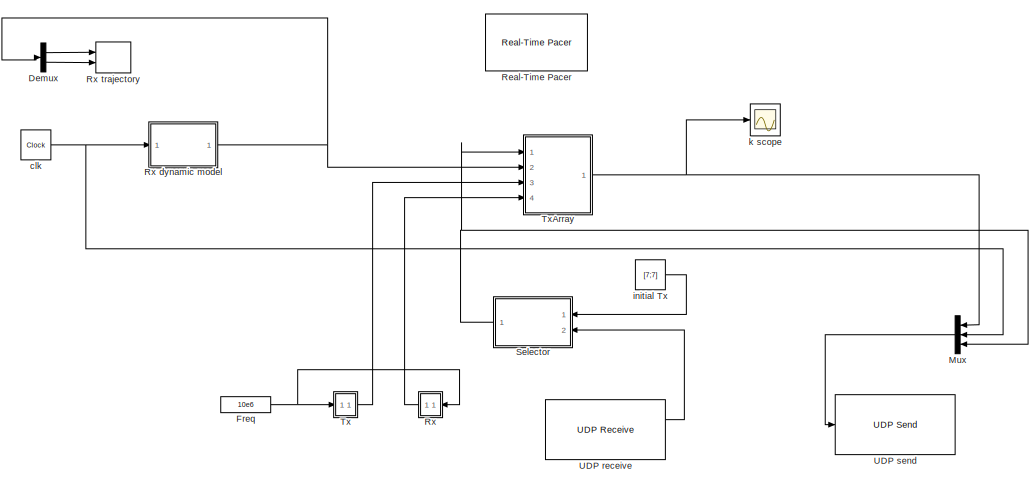
[diagram: root canvas - part 1/2, right side, full height]
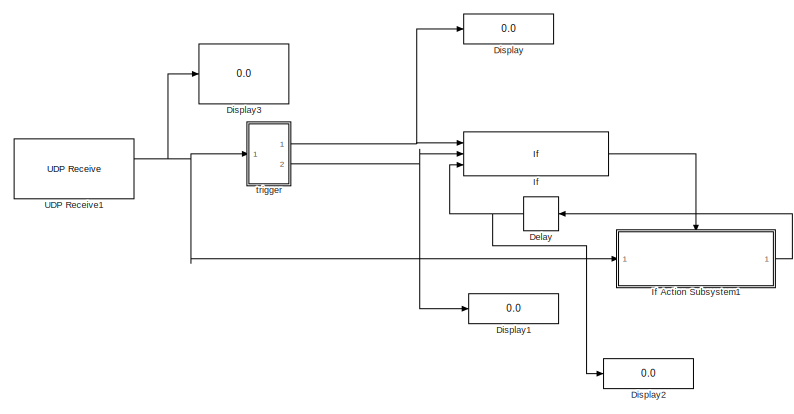
[diagram: root canvas - part 2/2, left side, full height]
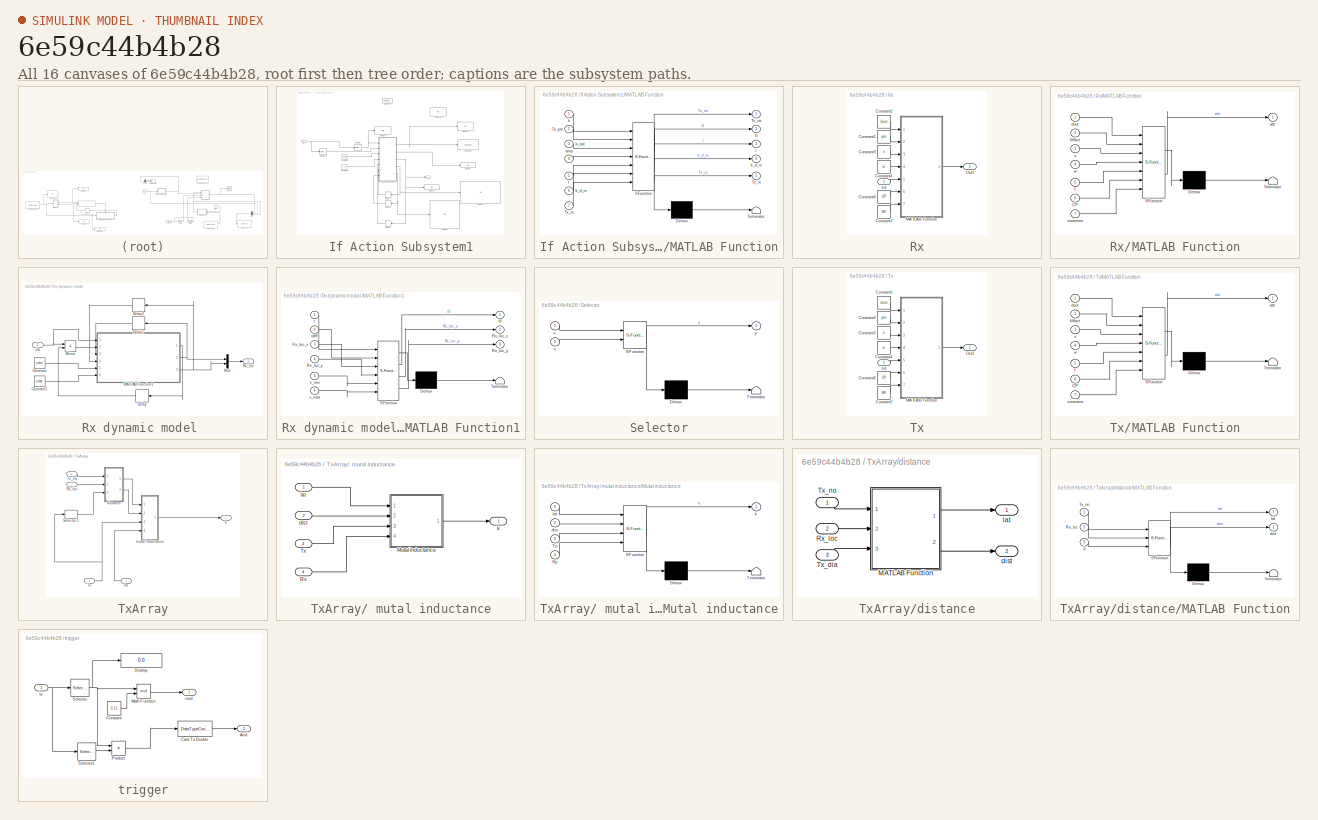
[diagram: thumbnail index - all 16 canvases of the model, root first then tree order]
MODEL slx_6e59c44b4b28
KIND model
CONFIG AbsTol = auto
CONFIG EnableMultiTasking = on
CONFIG FixedStep = 0.01
CONFIG MaxStep = auto
CONFIG MinStep = auto
CONFIG RelTol = 1e-3
CONFIG SampleTimeConstraint = Unconstrained
CONFIG SolverName = FixedStepDiscrete
CONFIG StartTime = 0.0
CONFIG StopTime = 50
BLOCK [Delay] Delay
  Commented = on
  DelayLength = 1
  InitialCondition = 0
  InputPortMap = u0
  Ports = [1, 1]
BLOCK [Demux] Demux
  Outputs = 2
  Ports = [1, 2]
BLOCK [Display] Display
  Commented = on
  Decimation = 1
  Ports = [1]
BLOCK [Display] Display1
  Commented = on
  Decimation = 1
  Ports = [1]
BLOCK [Display] Display2
  Commented = on
  Decimation = 1
  Ports = [1]
BLOCK [Display] Display3
  Commented = on
  Decimation = 1
  Ports = [1]
BLOCK [Constant] Freq
  Value = 10e6
BLOCK [If] If
  Commented = on
  IfExpression = (u1 == 0 & u2 ~=0) | u3 > 1
  NumInputs = 3
  Ports = [3, 1]
  ShowElse = off
BLOCK [SubSystem] If Action Subsystem1
  Commented = on
  Ports = [1, 1, 0, 0, 0, 0, 0, 1]
  RequestExecContextInheritance = off
  TreatAsAtomicUnit = on
BLOCK [ActionPort] If Action Subsystem1/Action Port
  ActionPortLabel = if((u1 == 0 & u2 ~=0) | u3 > 1)
BLOCK [Constant] If Action Subsystem1/Constant1
  Value = 2.88e-2
BLOCK [Constant] If Action Subsystem1/Constant2
  Value = 2.6
BLOCK [Delay] If Action Subsystem1/Delay1
  DelayLength = 1
  InitialCondition = zeros(2,3)
  InputPortMap = u0
  Ports = [1, 1]
BLOCK [Delay] If Action Subsystem1/Delay3
  DelayLength = 1
  InitialCondition = zeros(8,2)
  InputPortMap = u0
  Ports = [1, 1]
BLOCK [Delay] If Action Subsystem1/Delay4
  DelayLength = 1
  InitialCondition = 0
  InputPortMap = u0
  Ports = [1, 1]
BLOCK [Display] If Action Subsystem1/Display1
  Decimation = 1
  Ports = [1]
BLOCK [Display] If Action Subsystem1/Display2
  Decimation = 1
  Ports = [1]
BLOCK [Display] If Action Subsystem1/Display3
  Decimation = 1
  Ports = [1]
BLOCK [Display] If Action Subsystem1/Display4
  Decimation = 1
  Ports = [1]
BLOCK [Display] If Action Subsystem1/Display5
  Decimation = 1
  Ports = [1]
BLOCK [Display] If Action Subsystem1/Display6
  Decimation = 1
  Ports = [1]
BLOCK [Display] If Action Subsystem1/Display7
  Decimation = 1
  Ports = [1]
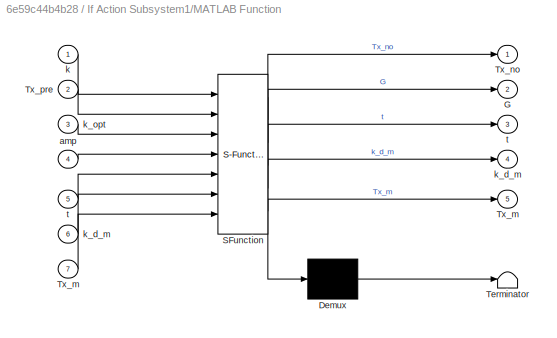
BLOCK [SubSystem] If Action Subsystem1/MATLAB Function
  ErrorFcn = Stateflow.Translate.translate
  PermitHierarchicalResolution = ExplicitOnly
  Ports = [7, 5]
  RequestExecContextInheritance = off
  SFBlockType = MATLAB Function
  TreatAsAtomicUnit = on
BLOCK [Demux] If Action Subsystem1/MATLAB Function/ Demux 
  Outputs = 1
  Ports = [1, 1]
BLOCK [S-Function] If Action Subsystem1/MATLAB Function/ SFunction 
  EnableBusSupport = on
  FunctionName = sf_sfun
  PortCounts = [7 6]
  Ports = [7, 6]
  SFcnIsStateOwnerBlock = off
  SFunctionDeploymentMode = off
  Tag = Stateflow S-Function 8
BLOCK [Terminator] If Action Subsystem1/MATLAB Function/ Terminator 
BLOCK [Outport] If Action Subsystem1/MATLAB Function/G
  Port = 2
BLOCK [Outport] If Action Subsystem1/MATLAB Function/Tx_m
  Port = 5
BLOCK [Inport] If Action Subsystem1/MATLAB Function/Tx_m 
  Port = 7
BLOCK [Outport] If Action Subsystem1/MATLAB Function/Tx_no
BLOCK [Inport] If Action Subsystem1/MATLAB Function/Tx_pre
  Port = 2
BLOCK [Inport] If Action Subsystem1/MATLAB Function/amp
  Port = 4
BLOCK [Inport] If Action Subsystem1/MATLAB Function/k
BLOCK [Outport] If Action Subsystem1/MATLAB Function/k_d_m
  Port = 4
BLOCK [Inport] If Action Subsystem1/MATLAB Function/k_d_m 
  Port = 6
BLOCK [Inport] If Action Subsystem1/MATLAB Function/k_opt
  Port = 3
BLOCK [Outport] If Action Subsystem1/MATLAB Function/t
  Port = 3
BLOCK [Inport] If Action Subsystem1/MATLAB Function/t 
  Port = 5
BLOCK [Selector] If Action Subsystem1/Selector
  IndexOptions = Index vector (dialog)
  Indices = 1
  InputPortWidth = 4
  OutputSizes = 1
  Ports = [1, 1]
BLOCK [Selector] If Action Subsystem1/Selector1
  IndexOptions = Index vector (dialog)
  Indices = [3;4]
  InputPortWidth = 4
  OutputSizes = 1
  Ports = [1, 1]
BLOCK [Reference] If Action Subsystem1/UDP Send  REF=raspberrypiNetworklib/UDP Send
  Ports = [1]
  SourceBlock = raspberrypiNetworklib/UDP Send
  SourceProductBaseCode = RASPPI
  SourceType = UDP Send
BLOCK [Inport] If Action Subsystem1/ip
BLOCK [Outport] If Action Subsystem1/t
BLOCK [Mux] Mux
  DisplayOption = bar
  Inputs = 3
  Ports = [3, 1]
BLOCK [Reference] Real-Time Pacer  REF=realtime_pacer_lib/Real-Time Pacer
  Ports = []
  SourceBlock = realtime_pacer_lib/Real-Time Pacer
  SourceProductName = Real-Time Pacer
  SourceType = RealTime_Pacer
BLOCK [SubSystem] Rx
  Ports = [1, 1]
  RequestExecContextInheritance = off
BLOCK [SubSystem] Rx dynamic model 
  Ports = [1, 1]
  RequestExecContextInheritance = off
BLOCK [Constant] Rx dynamic model /Constant
  Value = v_min
  VectorParams1D = off
BLOCK [Constant] Rx dynamic model /Constant1
  Value = v_max
  VectorParams1D = off
BLOCK [Delay] Rx dynamic model /Delay
  DelayLength = 1
  InitialCondition = 0
  InputPortMap = u0
  Ports = [1, 1]
BLOCK [Delay] Rx dynamic model /Delay1
  DelayLength = 1
  InitialCondition = initx
  InputPortMap = u0
  Ports = [1, 1]
BLOCK [Delay] Rx dynamic model /Delay2
  DelayLength = 1
  InitialCondition = inity
  InputPortMap = u0
  Ports = [1, 1]
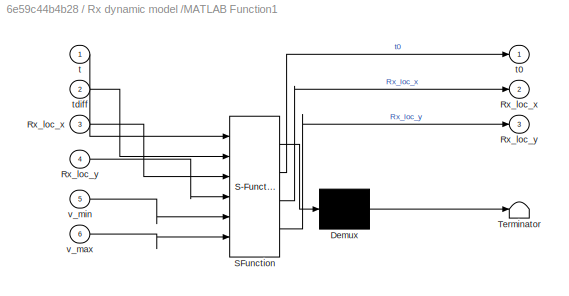
BLOCK [SubSystem] Rx dynamic model /MATLAB Function1
  ErrorFcn = Stateflow.Translate.translate
  PermitHierarchicalResolution = ExplicitOnly
  Ports = [6, 3]
  RequestExecContextInheritance = off
  SFBlockType = MATLAB Function
  TreatAsAtomicUnit = on
BLOCK [Demux] Rx dynamic model /MATLAB Function1/ Demux 
  Outputs = 1
  Ports = [1, 1]
BLOCK [S-Function] Rx dynamic model /MATLAB Function1/ SFunction 
  EnableBusSupport = on
  FunctionName = sf_sfun
  PortCounts = [6 4]
  Ports = [6, 4]
  SFcnIsStateOwnerBlock = off
  SFunctionDeploymentMode = off
  Tag = Stateflow S-Function 5
BLOCK [Terminator] Rx dynamic model /MATLAB Function1/ Terminator 
BLOCK [Outport] Rx dynamic model /MATLAB Function1/Rx_loc_x
  Port = 2
BLOCK [Inport] Rx dynamic model /MATLAB Function1/Rx_loc_x 
  Port = 3
BLOCK [Outport] Rx dynamic model /MATLAB Function1/Rx_loc_y
  Port = 3
BLOCK [Inport] Rx dynamic model /MATLAB Function1/Rx_loc_y 
  Port = 4
BLOCK [Inport] Rx dynamic model /MATLAB Function1/t
BLOCK [Outport] Rx dynamic model /MATLAB Function1/t0
BLOCK [Inport] Rx dynamic model /MATLAB Function1/tdiff
  Port = 2
BLOCK [Inport] Rx dynamic model /MATLAB Function1/v_max
  Port = 6
BLOCK [Inport] Rx dynamic model /MATLAB Function1/v_min
  Port = 5
BLOCK [Sum] Rx dynamic model /Minus
  IconShape = rectangular
  Inputs = +-
  Ports = [2, 1]
BLOCK [Mux] Rx dynamic model /Mux
  DisplayOption = bar
  Inputs = 2
  Ports = [2, 1]
BLOCK [Outport] Rx dynamic model /Rx_loc
BLOCK [Inport] Rx dynamic model /clk
BLOCK [Record] Rx trajectory
  CompatibilityTag = XY
  FileSettingsInternal = {"entries":[{"content":{"excelSettings":{"content":{},"type":"Streamout.ExcelSettings"}},"type":"Streamout.FileSettingStorage","uuid":"31a4ec05-c512-48d1-876e-5766672d7d43"}],"packageUris":["http://schema.mathworks.com/mf0/streamout_blocks/R2020a"],"version":"1.0"}
  Layout = [1 1]
  Ports = [2]
  RecordToWorkspace = on
  SignalsInternal = {"entries":[{"content":{"signals":[{"content":{"blockPath":["TxArray/Rx trajectory"],"channel":[],"dimensions":[1],"domain":"TxArray/Rx trajectory","lineColor":"#a2142f","plots":[1],"port":1,"sid":[""],"signalID":51290,"signalName":"Demux:1"},"type":"RecordBlkView.Signal","uuid":"0aae7323-a21c-435c-a499-c26e652a0b80"},{"content":{"blockPath":["TxArray/Rx trajectory"],"channel":[],"dimensions":[1],...<+381ch>
  VisualizationBindings = {"xyplotplugin":{"info":[{"series":[{"bindingParametersList":[{"parameter":"X-Axis","signalID":51290,"signalName":"Demux:1"},{"parameter":"Y-Axis","signalID":51294,"signalName":"Demux:2"}],"seriesID":44186}],"subplotID":1}]}}
BLOCK [Constant] Rx/Constant1
  Value = dout
BLOCK [Constant] Rx/Constant2
  Value = phi
BLOCK [Constant] Rx/Constant3
  Value = s
BLOCK [Constant] Rx/Constant4
  Value = w
BLOCK [Constant] Rx/Constant6
  Value = CP
BLOCK [Constant] Rx/Constant7
  Value = SR
BLOCK [Inport] Rx/In1
BLOCK [SubSystem] Rx/MATLAB Function
  ErrorFcn = Stateflow.Translate.translate
  PermitHierarchicalResolution = ExplicitOnly
  Ports = [7, 1]
  RequestExecContextInheritance = off
  SFBlockType = MATLAB Function
  TreatAsAtomicUnit = on
BLOCK [Demux] Rx/MATLAB Function/ Demux 
  Outputs = 1
  Ports = [1, 1]
BLOCK [S-Function] Rx/MATLAB Function/ SFunction 
  EnableBusSupport = on
  FunctionName = sf_sfun
  PortCounts = [7 2]
  Ports = [7, 2]
  SFcnIsStateOwnerBlock = off
  SFunctionDeploymentMode = off
  Tag = Stateflow S-Function 4
BLOCK [Terminator] Rx/MATLAB Function/ Terminator 
BLOCK [Inport] Rx/MATLAB Function/CP
  Port = 6
BLOCK [Outport] Rx/MATLAB Function/attr
BLOCK [Inport] Rx/MATLAB Function/dout
BLOCK [Inport] Rx/MATLAB Function/f
  Port = 5
BLOCK [Inport] Rx/MATLAB Function/fillfact
  Port = 2
BLOCK [Inport] Rx/MATLAB Function/s
  Port = 3
BLOCK [Inport] Rx/MATLAB Function/sourceres
  Port = 7
BLOCK [Inport] Rx/MATLAB Function/w
  Port = 4
BLOCK [Outport] Rx/Out1
BLOCK [SubSystem] Selector
  ErrorFcn = Stateflow.Translate.translate
  NameLocation = top
  PermitHierarchicalResolution = ExplicitOnly
  Ports = [2, 1]
  RequestExecContextInheritance = off
  SFBlockType = MATLAB Function
  TreatAsAtomicUnit = on
BLOCK [Demux] Selector/ Demux 
  Outputs = 1
  Ports = [1, 1]
BLOCK [S-Function] Selector/ SFunction 
  EnableBusSupport = on
  FunctionName = sf_sfun
  PortCounts = [2 2]
  Ports = [2, 2]
  SFcnIsStateOwnerBlock = off
  SFunctionDeploymentMode = off
  Tag = Stateflow S-Function 3
BLOCK [Terminator] Selector/ Terminator 
BLOCK [Inport] Selector/u
  Port = 2
BLOCK [Inport] Selector/v
BLOCK [Outport] Selector/y
BLOCK [SubSystem] Tx
  Ports = [1, 1]
  RequestExecContextInheritance = off
BLOCK [Constant] Tx/Constant1
  Value = dout
BLOCK [Constant] Tx/Constant2
  Value = phi
BLOCK [Constant] Tx/Constant3
  Value = s
BLOCK [Constant] Tx/Constant4
  Value = w
BLOCK [Constant] Tx/Constant6
  Value = CP
BLOCK [Constant] Tx/Constant7
  Value = SR
BLOCK [Inport] Tx/In1
BLOCK [SubSystem] Tx/MATLAB Function
  ErrorFcn = Stateflow.Translate.translate
  PermitHierarchicalResolution = ExplicitOnly
  Ports = [7, 1]
  RequestExecContextInheritance = off
  SFBlockType = MATLAB Function
  TreatAsAtomicUnit = on
BLOCK [Demux] Tx/MATLAB Function/ Demux 
  Outputs = 1
  Ports = [1, 1]
BLOCK [S-Function] Tx/MATLAB Function/ SFunction 
  EnableBusSupport = on
  FunctionName = sf_sfun
  PortCounts = [7 2]
  Ports = [7, 2]
  SFcnIsStateOwnerBlock = off
  SFunctionDeploymentMode = off
  Tag = Stateflow S-Function 2
BLOCK [Terminator] Tx/MATLAB Function/ Terminator 
BLOCK [Inport] Tx/MATLAB Function/CP
  Port = 6
BLOCK [Outport] Tx/MATLAB Function/attr
BLOCK [Inport] Tx/MATLAB Function/dout
BLOCK [Inport] Tx/MATLAB Function/f
  Port = 5
BLOCK [Inport] Tx/MATLAB Function/fillfact
  Port = 2
BLOCK [Inport] Tx/MATLAB Function/s
  Port = 3
BLOCK [Inport] Tx/MATLAB Function/sourceres
  Port = 7
BLOCK [Inport] Tx/MATLAB Function/w
  Port = 4
BLOCK [Outport] Tx/Out1
BLOCK [SubSystem] TxArray
  Ports = [4, 1]
  RequestExecContextInheritance = off
BLOCK [SubSystem] TxArray/ mutal inductance
  Ports = [4, 1]
  RequestExecContextInheritance = off
BLOCK [SubSystem] TxArray/ mutal inductance/Mutal inductance
  ErrorFcn = Stateflow.Translate.translate
  PermitHierarchicalResolution = ExplicitOnly
  Ports = [4, 1]
  RequestExecContextInheritance = off
  SFBlockType = MATLAB Function
  TreatAsAtomicUnit = on
BLOCK [Demux] TxArray/ mutal inductance/Mutal inductance/ Demux 
  Outputs = 1
  Ports = [1, 1]
BLOCK [S-Function] TxArray/ mutal inductance/Mutal inductance/ SFunction 
  EnableBusSupport = on
  FunctionName = sf_sfun
  PortCounts = [4 2]
  Ports = [4, 2]
  SFcnIsStateOwnerBlock = off
  SFunctionDeploymentMode = off
  Tag = Stateflow S-Function 1
BLOCK [Terminator] TxArray/ mutal inductance/Mutal inductance/ Terminator 
BLOCK [Inport] TxArray/ mutal inductance/Mutal inductance/Rp
  Port = 4
BLOCK [Inport] TxArray/ mutal inductance/Mutal inductance/Tp
  Port = 3
BLOCK [Inport] TxArray/ mutal inductance/Mutal inductance/dist
  Port = 2
BLOCK [Outport] TxArray/ mutal inductance/Mutal inductance/k
BLOCK [Inport] TxArray/ mutal inductance/Mutal inductance/lat
BLOCK [Inport] TxArray/ mutal inductance/Rx
  Port = 4
BLOCK [Inport] TxArray/ mutal inductance/Tx
  Port = 3
BLOCK [Inport] TxArray/ mutal inductance/dist
  Port = 2
BLOCK [Outport] TxArray/ mutal inductance/k
BLOCK [Inport] TxArray/ mutal inductance/lat
BLOCK [Inport] TxArray/Rx
  Port = 4
BLOCK [Inport] TxArray/Rx_loc
  Port = 2
BLOCK [Selector] TxArray/Selector 1
  IndexOptions = Index vector (dialog)
  Indices = 1
  InputPortWidth = 14
  OutputSizes = 1
  Ports = [1, 1]
BLOCK [Inport] TxArray/Tx
  Port = 3
BLOCK [Inport] TxArray/Tx_no
BLOCK [SubSystem] TxArray/distance
  Ports = [3, 2]
  RequestExecContextInheritance = off
BLOCK [SubSystem] TxArray/distance/MATLAB Function
  ErrorFcn = Stateflow.Translate.translate
  PermitHierarchicalResolution = ExplicitOnly
  Ports = [3, 2]
  RequestExecContextInheritance = off
  SFBlockType = MATLAB Function
  TreatAsAtomicUnit = on
BLOCK [Demux] TxArray/distance/MATLAB Function/ Demux 
  Outputs = 1
  Ports = [1, 1]
BLOCK [S-Function] TxArray/distance/MATLAB Function/ SFunction 
  EnableBusSupport = on
  FunctionName = sf_sfun
  PortCounts = [3 3]
  Ports = [3, 3]
  SFcnIsStateOwnerBlock = off
  SFunctionDeploymentMode = off
  Tag = Stateflow S-Function 6
BLOCK [Terminator] TxArray/distance/MATLAB Function/ Terminator 
BLOCK [Inport] TxArray/distance/MATLAB Function/Rx_loc
  Port = 2
BLOCK [Inport] TxArray/distance/MATLAB Function/Tx_no
BLOCK [Inport] TxArray/distance/MATLAB Function/d
  Port = 3
BLOCK [Outport] TxArray/distance/MATLAB Function/dist
  Port = 2
BLOCK [Outport] TxArray/distance/MATLAB Function/lat
BLOCK [Inport] TxArray/distance/Rx_loc
  Port = 2
BLOCK [Inport] TxArray/distance/Tx_dia
  Port = 3
BLOCK [Inport] TxArray/distance/Tx_no
BLOCK [Outport] TxArray/distance/dist
  Port = 2
BLOCK [Outport] TxArray/distance/lat
BLOCK [Outport] TxArray/k
BLOCK [Reference] UDP Receive1  REF=raspberrypiNetworklib/UDP Receive
  Commented = on
  Ports = [0, 2]
  SourceBlock = raspberrypiNetworklib/UDP Receive
  SourceProductBaseCode = RASPPI
  SourceType = UDP Receive
BLOCK [Reference] UDP receive  REF=raspberrypiNetworklib/UDP Receive
  Ports = [0, 2]
  SourceBlock = raspberrypiNetworklib/UDP Receive
  SourceProductBaseCode = RASPPI
  SourceType = UDP Receive
BLOCK [Reference] UDP send  REF=raspberrypiNetworklib/UDP Send
  Ports = [1]
  SourceBlock = raspberrypiNetworklib/UDP Send
  SourceProductBaseCode = RASPPI
  SourceType = UDP Send
BLOCK [Clock] clk
  Decimation = 1
BLOCK [Constant] initial Tx
  Value = [7;7]
  VectorParams1D = off
BLOCK [Scope] k scope
  Floating = off
  NumInputPorts = 1
  Ports = [1]
  ScopeSpecificationString = Simulink.scopes.TimeScopeBlockCfg('CurrentConfiguration', extmgr.ConfigurationSet(extmgr.Configuration('Core','General UI',true),extmgr.Configuration('Core','Source UI',true),extmgr.Configuration('Sources','WiredSimulink',true,'DataLogging',true,'DataLoggingSaveFormat','Array'),extmgr.Configuration('Visuals','Time Domain',true,'SerializedDisplays',{struct('MinYLimReal','0','MaxYLimReal','0.1','YLa...<+1732ch>
BLOCK [SubSystem] trigger
  Commented = on
  Ports = [1, 2]
  RequestExecContextInheritance = off
BLOCK [Outport] trigger/And
  Port = 2
BLOCK [DataTypeConversion] trigger/Cast To Double
  OutDataTypeStr = double
  RndMeth = Floor
  SaturateOnIntegerOverflow = off
BLOCK [Constant] trigger/Constant
  Value = 0.11
BLOCK [Display] trigger/Display
  Decimation = 1
  Ports = [1]
BLOCK [Math] trigger/Math Function
  Operator = mod
  Ports = [2, 1]
BLOCK [Product] trigger/Product
  Ports = [2, 1]
BLOCK [Selector] trigger/Selector
  IndexOptions = Index vector (dialog)
  Indices = 2
  InputPortWidth = 4
  OutputSizes = 1
  Ports = [1, 1]
BLOCK [Selector] trigger/Selector1
  IndexOptions = Index vector (dialog)
  Indices = 1
  InputPortWidth = 4
  OutputSizes = 1
  Ports = [1, 1]
BLOCK [Inport] trigger/ip
BLOCK [Outport] trigger/mod
NET Delay:1 -> Display2:1, If:3
LINE Demux:1 -> Rx trajectory:1
LINE Demux:2 -> Rx trajectory:2
NET Freq:1 -> Rx:1, Tx:1
LINE If Action Subsystem1/Constant1:1 -> If Action Subsystem1/MATLAB Function:3
LINE If Action Subsystem1/Constant2:1 -> If Action Subsystem1/MATLAB Function:4
LINE If Action Subsystem1/Delay1:1 -> If Action Subsystem1/MATLAB Function:6
LINE If Action Subsystem1/Delay3:1 -> If Action Subsystem1/MATLAB Function:7
LINE If Action Subsystem1/Delay4:1 -> If Action Subsystem1/MATLAB Function:5
NET If Action Subsystem1/MATLAB Function:1 -> If Action Subsystem1/Display1:1, If Action Subsystem1/UDP Send:1
LINE If Action Subsystem1/MATLAB Function:2 -> If Action Subsystem1/Display4:1
NET If Action Subsystem1/MATLAB Function:3 -> If Action Subsystem1/Delay4:1, If Action Subsystem1/Display7:1, If Action Subsystem1/t:1
NET If Action Subsystem1/MATLAB Function:4 -> If Action Subsystem1/Delay1:1, If Action Subsystem1/Display2:1
NET If Action Subsystem1/MATLAB Function:5 -> If Action Subsystem1/Delay3:1, If Action Subsystem1/Display5:1
LINE If Action Subsystem1/Selector1:1 -> If Action Subsystem1/MATLAB Function:2
NET If Action Subsystem1/Selector:1 -> If Action Subsystem1/Display3:1, If Action Subsystem1/MATLAB Function:1
NET If Action Subsystem1/ip:1 -> If Action Subsystem1/Selector1:1, If Action Subsystem1/Selector:1
LINE If Action Subsystem1:1 -> Delay:1
LINE If:1 -> If Action Subsystem1:ifaction
LINE Mux:1 -> UDP send:1
LINE Rx dynamic model /Constant1:1 -> Rx dynamic model /MATLAB Function1:6
LINE Rx dynamic model /Constant:1 -> Rx dynamic model /MATLAB Function1:5
LINE Rx dynamic model /Delay1:1 -> Rx dynamic model /MATLAB Function1:3
LINE Rx dynamic model /Delay2:1 -> Rx dynamic model /MATLAB Function1:4
LINE Rx dynamic model /Delay:1 -> Rx dynamic model /Minus:2
LINE Rx dynamic model /MATLAB Function1:1 -> Rx dynamic model /Delay:1
NET Rx dynamic model /MATLAB Function1:2 -> Rx dynamic model /Delay1:1, Rx dynamic model /Mux:1
NET Rx dynamic model /MATLAB Function1:3 -> Rx dynamic model /Delay2:1, Rx dynamic model /Mux:2
LINE Rx dynamic model /Minus:1 -> Rx dynamic model /MATLAB Function1:2
LINE Rx dynamic model /Mux:1 -> Rx dynamic model /Rx_loc:1
NET Rx dynamic model /clk:1 -> Rx dynamic model /MATLAB Function1:1, Rx dynamic model /Minus:1
NET Rx dynamic model :1 -> Demux:1, TxArray:2
LINE Rx/Constant1:1 -> Rx/MATLAB Function:1
LINE Rx/Constant2:1 -> Rx/MATLAB Function:2
LINE Rx/Constant3:1 -> Rx/MATLAB Function:3
LINE Rx/Constant4:1 -> Rx/MATLAB Function:4
LINE Rx/Constant6:1 -> Rx/MATLAB Function:6
LINE Rx/Constant7:1 -> Rx/MATLAB Function:7
LINE Rx/In1:1 -> Rx/MATLAB Function:5
LINE Rx/MATLAB Function:1 -> Rx/Out1:1
LINE Rx:1 -> TxArray:4
NET Selector:1 -> Mux:3, TxArray:1
LINE Tx/Constant1:1 -> Tx/MATLAB Function:1
LINE Tx/Constant2:1 -> Tx/MATLAB Function:2
LINE Tx/Constant3:1 -> Tx/MATLAB Function:3
LINE Tx/Constant4:1 -> Tx/MATLAB Function:4
LINE Tx/Constant6:1 -> Tx/MATLAB Function:6
LINE Tx/Constant7:1 -> Tx/MATLAB Function:7
LINE Tx/In1:1 -> Tx/MATLAB Function:5
LINE Tx/MATLAB Function:1 -> Tx/Out1:1
LINE Tx:1 -> TxArray:3
LINE TxArray/ mutal inductance/Mutal inductance:1 -> TxArray/ mutal inductance/k:1
LINE TxArray/ mutal inductance/Rx:1 -> TxArray/ mutal inductance/Mutal inductance:4
LINE TxArray/ mutal inductance/Tx:1 -> TxArray/ mutal inductance/Mutal inductance:3
LINE TxArray/ mutal inductance/dist:1 -> TxArray/ mutal inductance/Mutal inductance:2
LINE TxArray/ mutal inductance/lat:1 -> TxArray/ mutal inductance/Mutal inductance:1
LINE TxArray/ mutal inductance:1 -> TxArray/k:1
LINE TxArray/Rx:1 -> TxArray/ mutal inductance:4
LINE TxArray/Rx_loc:1 -> TxArray/distance:2
LINE TxArray/Selector 1:1 -> TxArray/distance:3
NET TxArray/Tx:1 -> TxArray/ mutal inductance:3, TxArray/Selector 1:1
LINE TxArray/Tx_no:1 -> TxArray/distance:1
LINE TxArray/distance/MATLAB Function:1 -> TxArray/distance/lat:1
LINE TxArray/distance/MATLAB Function:2 -> TxArray/distance/dist:1
LINE TxArray/distance/Rx_loc:1 -> TxArray/distance/MATLAB Function:2
LINE TxArray/distance/Tx_dia:1 -> TxArray/distance/MATLAB Function:3
LINE TxArray/distance/Tx_no:1 -> TxArray/distance/MATLAB Function:1
LINE TxArray/distance:1 -> TxArray/ mutal inductance:1
LINE TxArray/distance:2 -> TxArray/ mutal inductance:2
NET TxArray:1 -> Mux:1, k scope:1
NET UDP Receive1:1 -> Display3:1, If Action Subsystem1:1, trigger:1
LINE UDP receive:1 -> Selector:2
NET clk:1 -> Mux:2, Rx dynamic model :1
LINE initial Tx:1 -> Selector:1
LINE trigger/Cast To Double:1 -> trigger/And:1
LINE trigger/Constant:1 -> trigger/Math Function:2
LINE trigger/Math Function:1 -> trigger/mod:1
LINE trigger/Product:1 -> trigger/Cast To Double:1
LINE trigger/Selector1:1 -> trigger/Product:2
NET trigger/Selector:1 -> trigger/Display:1, trigger/Math Function:1, trigger/Product:1
NET trigger/ip:1 -> trigger/Selector1:1, trigger/Selector:1
NET trigger:1 -> Display:1, If:1
NET trigger:2 -> Display1:1, If:2
note: NET lines group one-source signal fan-out (src -> all destinations, sorted); 1:1 wires keep LINE
CHART TxArray/distance/MATLAB Function states=1 transitions=1
  STATE_LABEL 'eML_blk_kernel()'
  STATE_LABEL "SCRIPT:\nfunction [lat, dist] = distance(Tx_no, Rx_loc, d)\n\ncoder.extrinsic('lat_dist');\ncoder.extrinsic('vertical_dist');\n\n\nlat = 0;\ndist = 0;\n\nlat = lat_dist(Tx_no, Rx_loc,d);\ndist = vertical_dist(Tx_no);\ndist = dist + 5e-2;\nend"
CHART If Action
Subsystem1/MATLAB Function states=1 transitions=1
  STATE_LABEL 'eML_blk_kernel()'
  STATE_LABEL "SCRIPT:\nfunction [Tx_no,G,t,k_d_m,Tx_m] = Controller(k,Tx_pre,k_opt,amp,t,k_d_m,Tx_m)\n\nk_diff = abs(k_opt-k)/k_opt;\nTx_pre = Tx_pre';\n\nif t == 0\n   \n\n    t = t+1;\n    k_d_m(1,:)  = [k_diff,Tx_pre];\n    k_d_m(2,:)  = [k_diff,Tx_pre];\n\n    \nelse\n\n    if k_diff < k_d_m(2,1)\n\n       k_d_m(2,:)  = [k_diff,Tx_pre];\n\n    end\n\nend\n\nG = round(amp*k_d_m(1,1));  \nTx_fix = k_d_m(1,2:3)';\n\nif t < 10\n    if t <...<+300ch>"
CHART TxArray/ mutal inductance/Mutal inductance states=1 transitions=1
  STATE_LABEL 'eML_blk_kernel()'
  STATE_LABEL "SCRIPT:\nfunction  k = solenoid_MI(lat,dist,Tp,Rp)\n\n\ncoder.extrinsic('MI');\n\n% M = 0;\nk = 0;\n\n[~,k] = MI(lat,dist,Tp,Rp);\n\nif k < 0\n    k = 0;\nend\n\nend"
CHART Tx/MATLAB Function states=1 transitions=1
  STATE_LABEL 'eML_blk_kernel()'
  STATE_LABEL "SCRIPT:\nfunction attr = PCBPhySim(dout,fillfact,s,w,f,CP,sourceres)\n\n\ny = PCBCoil(dout,fillfact,s,w,f,CP,'square',sourceres);\n\nattr = [y.dout,\n    y.din,\n    y.fillfact,\n    y.w,\n    y.s,\n    y.n,\n    y.L,\n    y.Rs,\n    y.Q,\n    y.C,\n    y.CP,\n    y.coilZ,\n    y.fSRF\n    y.f];"
CHART Selector states=1 transitions=1
  STATE_LABEL 'eML_blk_kernel()'
  STATE_LABEL 'SCRIPT:\nfunction y = select(v, u)\nif u==0\n\n    y = v;\nelse \n    y = u;\nend'
CHART Rx/MATLAB Function states=1 transitions=1
  STATE_LABEL 'eML_blk_kernel()'
  STATE_LABEL "SCRIPT:\nfunction attr = PCBPhySim(dout,fillfact,s,w,f,CP,sourceres)\n\n\ny = PCBCoil(dout,fillfact,s,w,f,CP,'square',sourceres);\n\nattr = [y.dout,\n    y.din,\n    y.fillfact,\n    y.w,\n    y.s,\n    y.n,\n    y.L,\n    y.Rs,\n    y.Q,\n    y.C,\n    y.CP,\n    y.coilZ,\n    y.fSRF\n    y.f];"
CHART Rx dynamic model /MATLAB Function1 states=1 transitions=1
  STATE_LABEL 'eML_blk_kernel()'
  STATE_LABEL 'SCRIPT:\nfunction [t0, Rx_loc_x, Rx_loc_y] = dynamic_on_TxArray(t, tdiff, Rx_loc_x, Rx_loc_y, v_min, v_max)\n% if t>=0 && t < 8\n%     tdiff = 0;\n% elseif t>=10 && t < 19\n%     tdiff = 0;\n% elseif t>=20 && t < 29\n%     tdiff = 0;\n% elseif t>=30 && t < 39\n%     tdiff = 0;   \n% elseif t>=40 && t < 49\n%     tdiff = 0;\n% elseif t>=50 && t < 59\n%     tdiff = 0;\n% elseif t>=60 && t < 69\n%     tdiff = 0;\n% ...<+357ch>'
CHART  states=0 transitions=0
CHART  states=0 transitions=0
CHART  states=0 transitions=0
CHART  states=0 transitions=0
CHART  states=0 transitions=0
CHART  states=0 transitions=0
CHART  states=0 transitions=0
